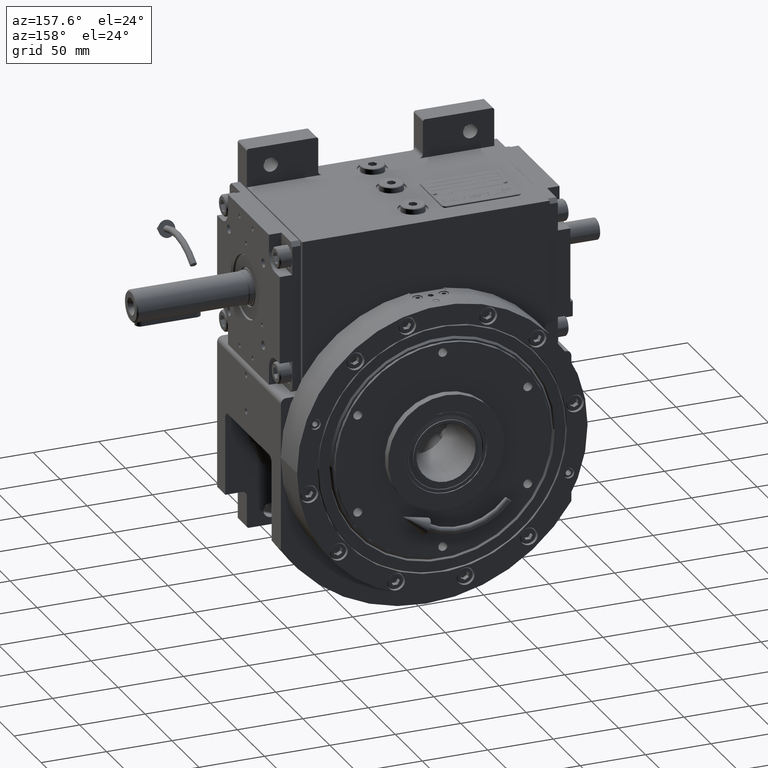
[diagram: clean part render]
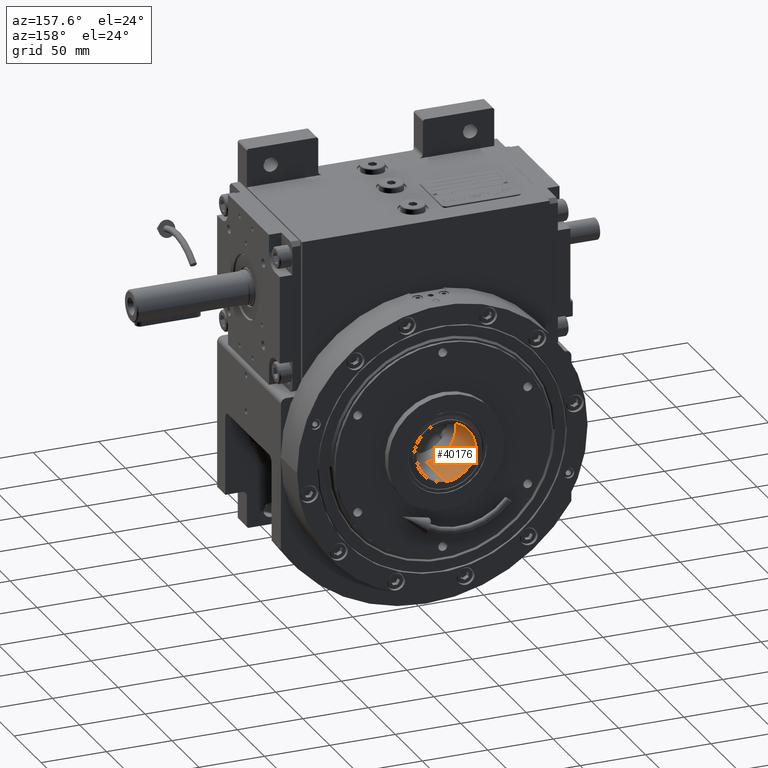
[diagram: same view with one face highlighted and labeled with its STEP entity id]
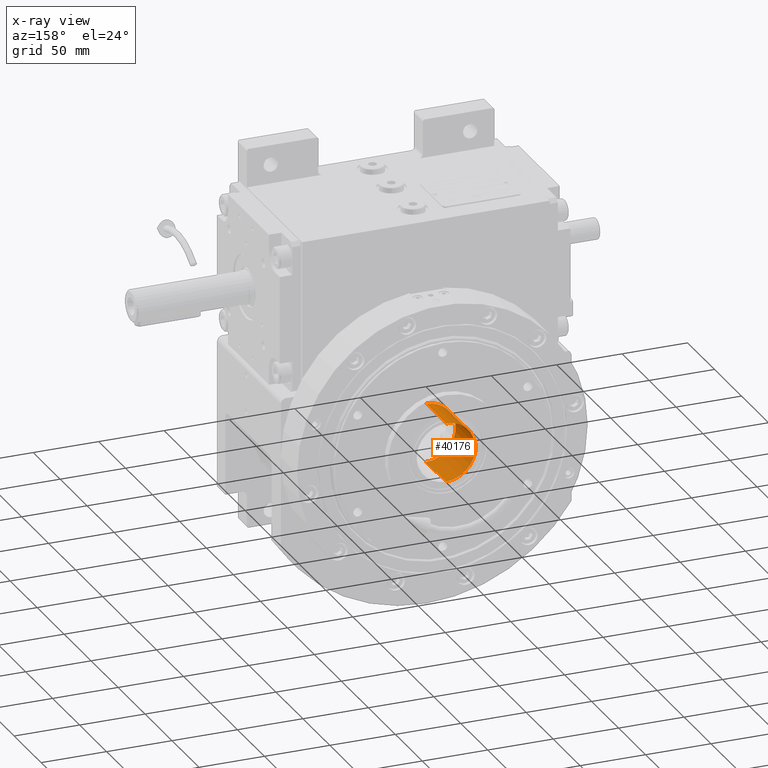
[diagram: x-ray of the same camera — body ghosted, the highlighted face saturated]
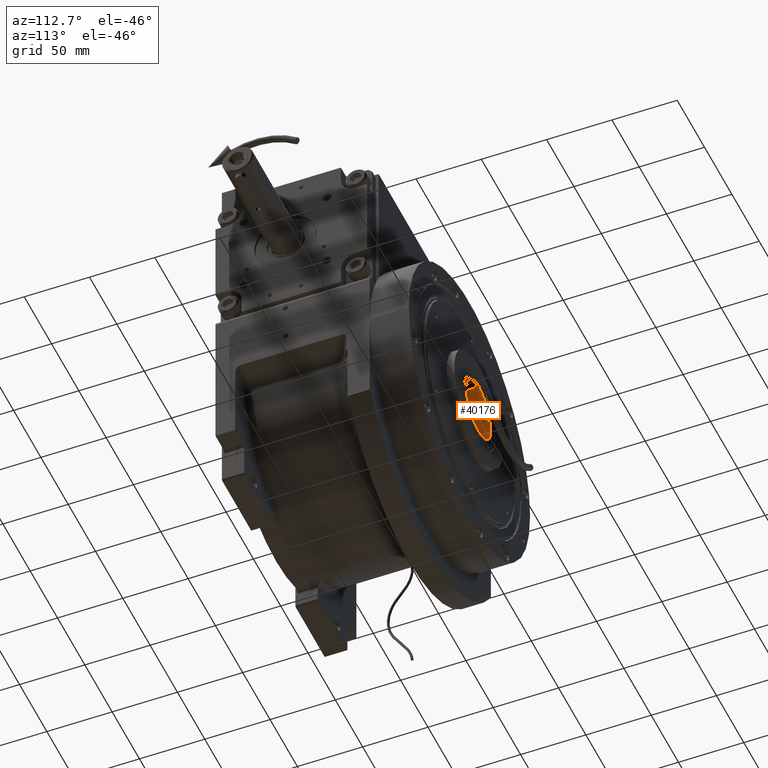
[diagram: same view with one face highlighted and labeled with its STEP entity id]
A machine part, auxiliary view. The second image highlights one B-rep face of the part: STEP entity #40176.
The next image is the same camera in x-ray: the body ghosted, the highlighted face saturated — about 0% of this face is hidden behind the body in this view.
A second angle (auxiliary view) of the same face is appended — the face is thin or edge-on in the first view.
In plain terms, the highlighted cylindrical surface (edge-blend (fillet) strip) has radius 22.5 mm, axis along (0, -1, 0).
Its self-contained STEP definition (entity closure, byte-faithful):
#3480 = CARTESIAN_POINT ( 'NONE',  ( 22.50000000000000000, 1.775709547036180256E-15, 9.999999999999994671 ) ) ;
#3533 = LINE ( 'NONE', #60552, #55314 ) ;
#3698 = ORIENTED_EDGE ( 'NONE', *, *, #14783, .F. ) ;
#4888 = LINE ( 'NONE', #51243, #5487 ) ;
#5096 = CARTESIAN_POINT ( 'NONE',  ( 0.000000000000000000, 0.000000000000000000, -26.99999999999999645 ) ) ;
#5487 = VECTOR ( 'NONE', #40229, 1000.000000000000000 ) ;
#6233 = DIRECTION ( 'NONE',  ( -1.000000000000000000, 0.000000000000000000, 0.000000000000000000 ) ) ;
#10195 = EDGE_LOOP ( 'NONE', ( #25137, #69976, #48153, #3698 ) ) ;
#14783 = EDGE_CURVE ( 'NONE', #58243, #51558, #18509, .T. ) ;
#18509 = CIRCLE ( 'NONE', #20950, 22.50000000000000000 ) ;
#19704 = EDGE_CURVE ( 'NONE', #22102, #72803, #55158, .T. ) ;
#20950 = AXIS2_PLACEMENT_3D ( 'NONE', #35495, #46906, #70108 ) ;
#22102 = VERTEX_POINT ( 'NONE', #39892 ) ;
#25137 = ORIENTED_EDGE ( 'NONE', *, *, #25173, .T. ) ;
#25173 = EDGE_CURVE ( 'NONE', #58243, #22102, #4888, .T. ) ;
#25533 = DIRECTION ( 'NONE',  ( -1.000000000000000000, 0.000000000000000000, 0.000000000000000000 ) ) ;
#29760 = DIRECTION ( 'NONE',  ( 0.000000000000000000, 0.000000000000000000, 1.000000000000000000 ) ) ;
#35495 = CARTESIAN_POINT ( 'NONE',  ( 0.000000000000000000, 0.000000000000000000, 9.999999999999994671 ) ) ;
#36209 = CARTESIAN_POINT ( 'NONE',  ( 0.000000000000000000, 2.571673343026990270E-15, 9.999999999999994671 ) ) ;
#36939 = CYLINDRICAL_SURFACE ( 'NONE', #53434, 22.50000000000000000 ) ;
#39892 = CARTESIAN_POINT ( 'NONE',  ( -22.50000000000000000, 8.572244476756641794E-16, -26.99999999999999645 ) ) ;
#40176 = ADVANCED_FACE ( 'NONE', ( #47591 ), #36939, .F. ) ;
#40229 = DIRECTION ( 'NONE',  ( 0.000000000000000000, 0.000000000000000000, -1.000000000000000000 ) ) ;
#46879 = DIRECTION ( 'NONE',  ( 0.000000000000000000, 0.000000000000000000, -1.000000000000000000 ) ) ;
#46906 = DIRECTION ( 'NONE',  ( 0.000000000000000000, 0.000000000000000000, -1.000000000000000000 ) ) ;
#47591 = FACE_OUTER_BOUND ( 'NONE', #10195, .T. ) ;
#48153 = ORIENTED_EDGE ( 'NONE', *, *, #72089, .F. ) ;
#49150 = DIRECTION ( 'NONE',  ( 0.000000000000000000, 0.000000000000000000, -1.000000000000000000 ) ) ;
#51243 = CARTESIAN_POINT ( 'NONE',  ( -22.50000000000000000, 2.571673343026990270E-15, 9.999999999999994671 ) ) ;
#51558 = VERTEX_POINT ( 'NONE', #3480 ) ;
#53434 = AXIS2_PLACEMENT_3D ( 'NONE', #36209, #29760, #25533 ) ;
#55158 = CIRCLE ( 'NONE', #64859, 22.50000000000000000 ) ;
#55314 = VECTOR ( 'NONE', #49150, 1000.000000000000000 ) ;
#56236 = CARTESIAN_POINT ( 'NONE',  ( -22.50000000000000000, 8.572244476756641794E-16, 9.999999999999994671 ) ) ;
#58243 = VERTEX_POINT ( 'NONE', #56236 ) ;
#60552 = CARTESIAN_POINT ( 'NONE',  ( 22.50000000000000000, 5.327128641108539387E-15, 9.999999999999994671 ) ) ;
#64859 = AXIS2_PLACEMENT_3D ( 'NONE', #5096, #46879, #6233 ) ;
#67281 = CARTESIAN_POINT ( 'NONE',  ( 22.50000000000000000, 1.775709547036180256E-15, -26.99999999999999645 ) ) ;
#69976 = ORIENTED_EDGE ( 'NONE', *, *, #19704, .T. ) ;
#70108 = DIRECTION ( 'NONE',  ( -1.000000000000000000, 0.000000000000000000, 0.000000000000000000 ) ) ;
#72089 = EDGE_CURVE ( 'NONE', #51558, #72803, #3533, .T. ) ;
#72803 = VERTEX_POINT ( 'NONE', #67281 ) ;